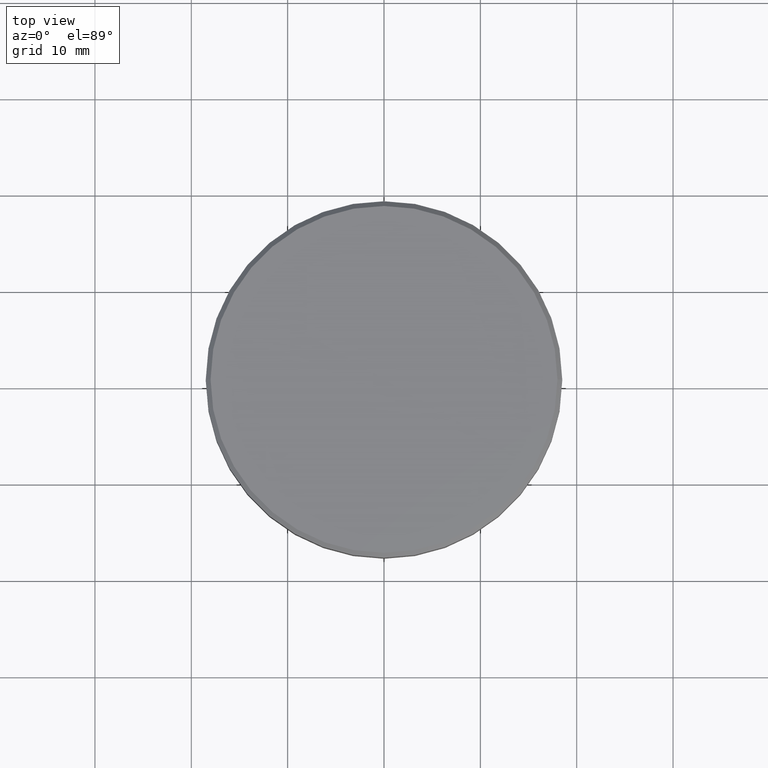
[diagram: clean part render]
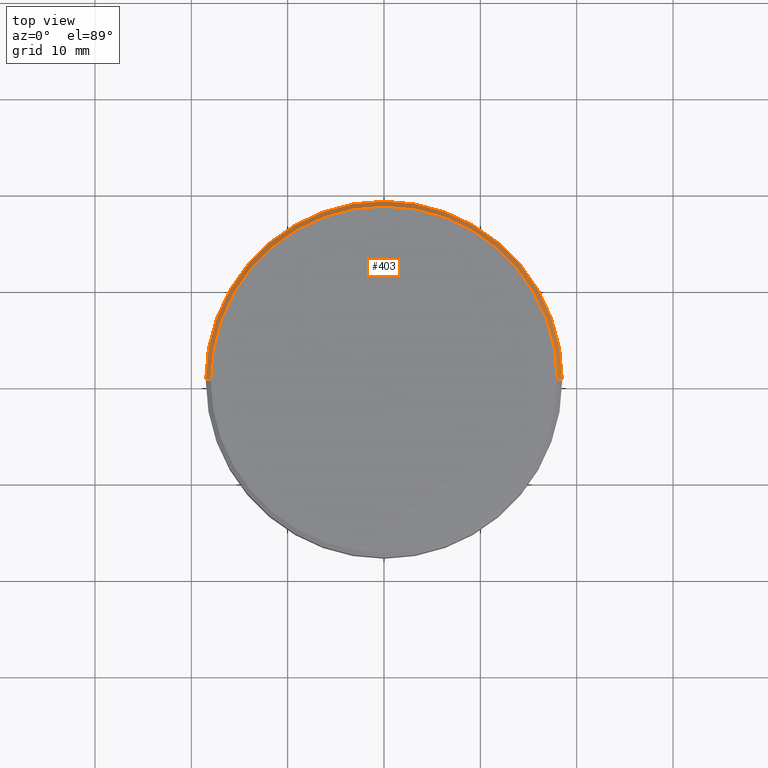
[diagram: same view with one face highlighted and labeled with its STEP entity id]
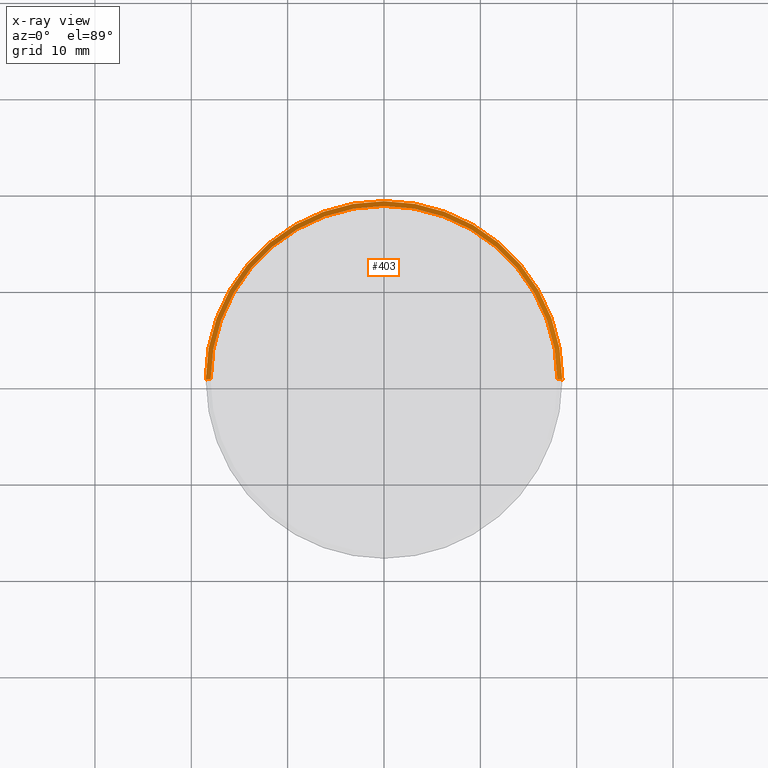
[diagram: x-ray of the same camera — body ghosted, the highlighted face saturated]
A machine part, top view. The second image highlights one B-rep face of the part: STEP entity #403.
The next image is the same camera in x-ray: the body ghosted, the highlighted face saturated — about 0% of this face is hidden behind the body in this view.
In plain terms, the highlighted conical surface has half-angle 45 deg.
Its self-contained STEP definition (entity closure, byte-faithful):
#2 = VECTOR ( 'NONE', #23, 1000.000000000000114 ) ;
#23 = DIRECTION ( 'NONE',  ( 0.7071067811865500152, 8.659560562354962440E-17, -0.7071067811865451302 ) ) ;
#51 = CARTESIAN_POINT ( 'NONE',  ( 0.000000000000000000, 0.000000000000000000, 0.000000000000000000 ) ) ;
#52 = CONICAL_SURFACE ( 'NONE', #347, 17.99999999999998224, 0.7853981633974517207 ) ;
#62 = VERTEX_POINT ( 'NONE', #86 ) ;
#70 = AXIS2_PLACEMENT_3D ( 'NONE', #299, #398, #159 ) ;
#79 = CARTESIAN_POINT ( 'NONE',  ( 17.99999999999998224, 2.204364238465233456E-15, 0.000000000000000000 ) ) ;
#86 = CARTESIAN_POINT ( 'NONE',  ( -17.99999999999998224, 0.000000000000000000, 0.000000000000000000 ) ) ;
#100 = EDGE_LOOP ( 'NONE', ( #353, #278, #352, #211 ) ) ;
#117 = CARTESIAN_POINT ( 'NONE',  ( 18.50000000000000000, 0.000000000000000000, -0.5000000000000143219 ) ) ;
#118 = DIRECTION ( 'NONE',  ( 0.000000000000000000, 0.000000000000000000, -1.000000000000000000 ) ) ;
#135 = DIRECTION ( 'NONE',  ( 0.000000000000000000, 0.000000000000000000, -1.000000000000000000 ) ) ;
#159 = DIRECTION ( 'NONE',  ( 1.000000000000000000, 0.000000000000000000, 0.000000000000000000 ) ) ;
#163 = CARTESIAN_POINT ( 'NONE',  ( 0.000000000000000000, 0.000000000000000000, -0.5000000000000143219 ) ) ;
#171 = CARTESIAN_POINT ( 'NONE',  ( 17.99999999999998224, 2.234980408443918426E-15, 0.000000000000000000 ) ) ;
#174 = CARTESIAN_POINT ( 'NONE',  ( -17.99999999999998224, 0.000000000000000000, 0.000000000000000000 ) ) ;
#186 = VERTEX_POINT ( 'NONE', #261 ) ;
#192 = CIRCLE ( 'NONE', #376, 18.50000000000000000 ) ;
#206 = DIRECTION ( 'NONE',  ( -0.7071067811865500152, 0.000000000000000000, -0.7071067811865451302 ) ) ;
#211 = ORIENTED_EDGE ( 'NONE', *, *, #387, .F. ) ;
#241 = LINE ( 'NONE', #174, #270 ) ;
#249 = CIRCLE ( 'NONE', #70, 17.99999999999998224 ) ;
#261 = CARTESIAN_POINT ( 'NONE',  ( -18.50000000000000000, 2.265596578422603396E-15, -0.5000000000000143219 ) ) ;
#270 = VECTOR ( 'NONE', #206, 1000.000000000000114 ) ;
#276 = EDGE_CURVE ( 'NONE', #186, #377, #192, .T. ) ;
#278 = ORIENTED_EDGE ( 'NONE', *, *, #361, .T. ) ;
#299 = CARTESIAN_POINT ( 'NONE',  ( 0.000000000000000000, 0.000000000000000000, 0.000000000000000000 ) ) ;
#338 = LINE ( 'NONE', #79, #2 ) ;
#340 = VERTEX_POINT ( 'NONE', #171 ) ;
#342 = EDGE_CURVE ( 'NONE', #340, #62, #249, .T. ) ;
#347 = AXIS2_PLACEMENT_3D ( 'NONE', #51, #118, #366 ) ;
#352 = ORIENTED_EDGE ( 'NONE', *, *, #276, .F. ) ;
#353 = ORIENTED_EDGE ( 'NONE', *, *, #342, .F. ) ;
#361 = EDGE_CURVE ( 'NONE', #340, #377, #338, .T. ) ;
#366 = DIRECTION ( 'NONE',  ( -1.000000000000000000, 0.000000000000000000, 0.000000000000000000 ) ) ;
#376 = AXIS2_PLACEMENT_3D ( 'NONE', #163, #135, #386 ) ;
#377 = VERTEX_POINT ( 'NONE', #117 ) ;
#386 = DIRECTION ( 'NONE',  ( 1.000000000000000000, 0.000000000000000000, 0.000000000000000000 ) ) ;
#387 = EDGE_CURVE ( 'NONE', #62, #186, #241, .T. ) ;
#398 = DIRECTION ( 'NONE',  ( -0.000000000000000000, -0.000000000000000000, 1.000000000000000000 ) ) ;
#402 = FACE_OUTER_BOUND ( 'NONE', #100, .T. ) ;
#403 = ADVANCED_FACE ( 'NONE', ( #402 ), #52, .T. ) ;